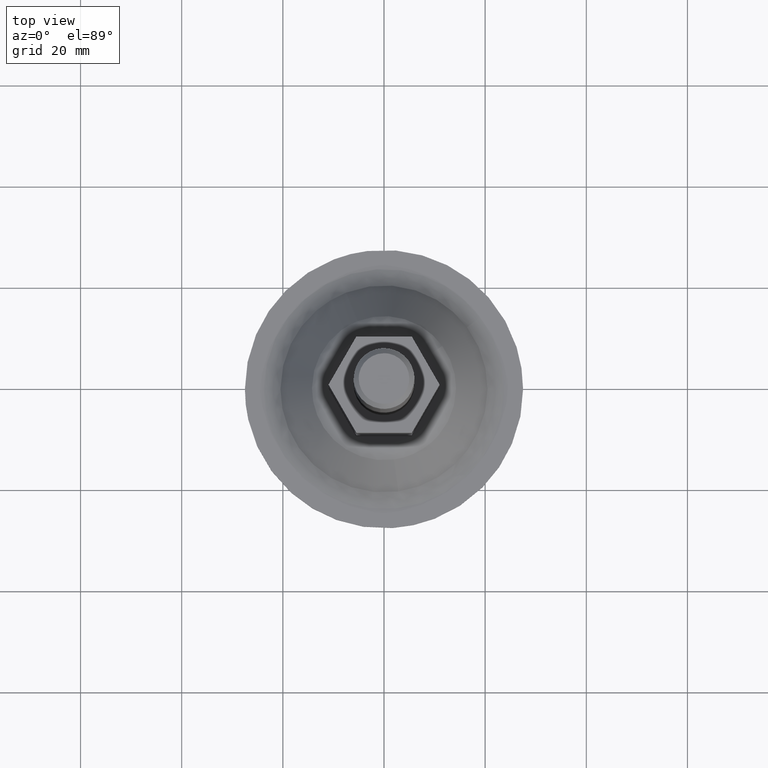
[diagram: clean part render]
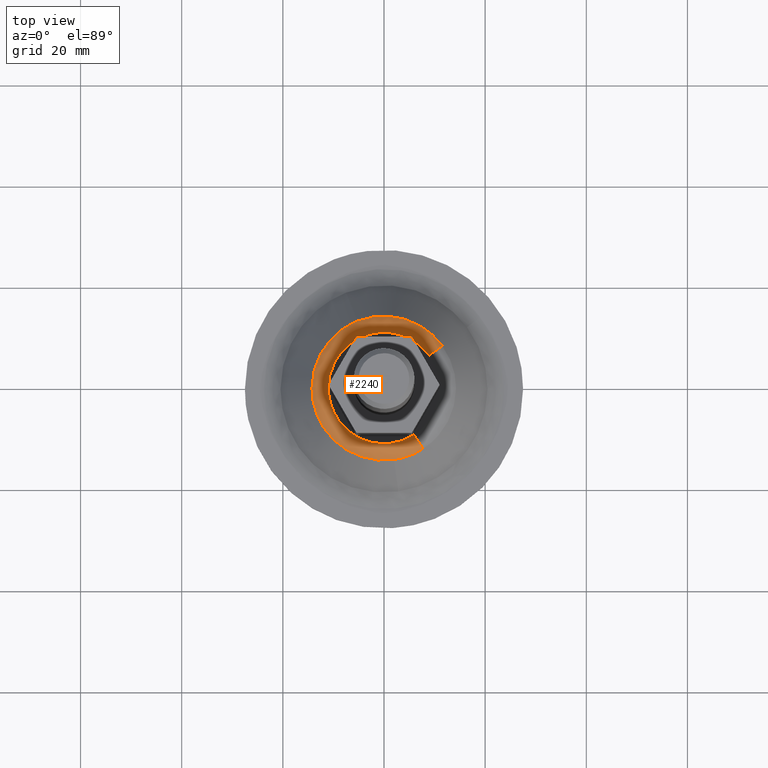
[diagram: same view with one face highlighted and labeled with its STEP entity id]
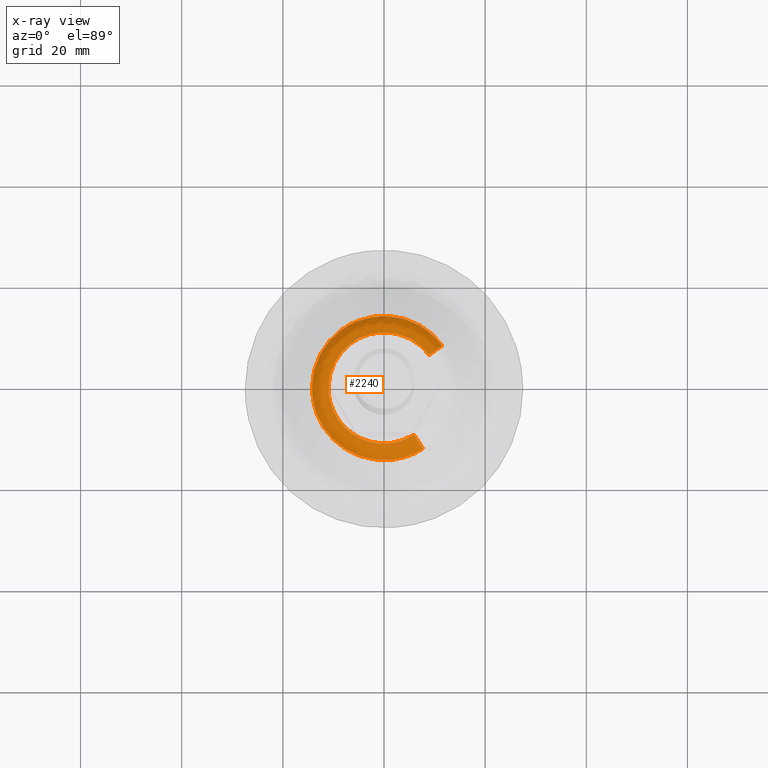
[diagram: x-ray of the same camera — body ghosted, the highlighted face saturated]
A machine part, top view. The second image highlights one B-rep face of the part: STEP entity #2240.
The next image is the same camera in x-ray: the body ghosted, the highlighted face saturated — about 1% of this face is hidden behind the body in this view.
In plain terms, the highlighted face is a freeform B-spline surface patch.
Its self-contained STEP definition (entity closure, byte-faithful):
#1466=CARTESIAN_POINT('',(1.973662397595558,-14.112380766075439,12.332229002119030));
#1467=VERTEX_POINT('',#1466);
#1473=CARTESIAN_POINT('',(-14.249724000000020,0.0,12.332229000000099));
#1474=VERTEX_POINT('',#1473);
#1475=CARTESIAN_POINT('',(1.973662397595558,-14.112380766075445,12.332229002119028));
#1476=CARTESIAN_POINT('',(0.991609918668241,-14.249724000000027,12.332229000000096));
#1477=CARTESIAN_POINT('',(0.0,-14.249724000000020,12.332229000000099));
#1478=CARTESIAN_POINT('',(-14.249724000000022,-14.249724000000022,12.332229000000101));
#1479=CARTESIAN_POINT('',(-14.249724000000020,0.0,12.332229000000099));
#1487=(BOUNDED_CURVE()B_SPLINE_CURVE(2,(#1475,#1476,#1477,#1478,#1479),.UNSPECIFIED.,.F.,.U.)B_SPLINE_CURVE_WITH_KNOTS((3,2,3),(0.726086221411751,0.750000000000000,1.0),.UNSPECIFIED.)CURVE()GEOMETRIC_REPRESENTATION_ITEM()RATIONAL_B_SPLINE_CURVE((0.949326419176318,0.971983265661182,1.0,0.707106781186548,1.0))REPRESENTATION_ITEM(''));
#1488=EDGE_CURVE('',#1467,#1474,#1487,.T.);
#1490=CARTESIAN_POINT('',(-5.222541155026111,13.258193112937951,12.332230166261009));
#1491=VERTEX_POINT('',#1490);
#1492=CARTESIAN_POINT('',(-14.249724000000020,0.0,12.332229000000099));
#1493=CARTESIAN_POINT('',(-14.249724171568751,9.702292238858675,12.332229317023637));
#1494=CARTESIAN_POINT('',(-5.222541155026111,13.258193112937954,12.332230166261004));
#1502=(BOUNDED_CURVE()B_SPLINE_CURVE(2,(#1492,#1493,#1494),.UNSPECIFIED.,.F.,.U.)B_SPLINE_CURVE_WITH_KNOTS((3,3),(0.0,0.187769652484499),.UNSPECIFIED.)CURVE()GEOMETRIC_REPRESENTATION_ITEM()RATIONAL_B_SPLINE_CURVE((1.0,0.780014168353327,0.890481641985128))REPRESENTATION_ITEM(''));
#1503=EDGE_CURVE('',#1474,#1491,#1502,.T.);
#1611=CARTESIAN_POINT('',(11.528269259530280,8.375773833915710,12.332231866010259));
#1612=VERTEX_POINT('',#1611);
#1613=CARTESIAN_POINT('',(-5.222541155026111,13.258193112937949,12.332230166261008));
#1614=CARTESIAN_POINT('',(-2.705395062761318,14.249723360448694,12.332230626552098));
#1615=CARTESIAN_POINT('',(-0.000001027504817,14.249723253474430,12.332230898616571));
#1616=CARTESIAN_POINT('',(7.260597670982422,14.249722966382373,12.332231628769335));
#1617=CARTESIAN_POINT('',(11.528269259530278,8.375773833915710,12.332231866010252));
#1625=(BOUNDED_CURVE()B_SPLINE_CURVE(2,(#1613,#1614,#1615,#1616,#1617),.UNSPECIFIED.,.F.,.U.)B_SPLINE_CURVE_WITH_KNOTS((3,2,3),(0.187769652484499,0.250000000000000,0.398750375973286),.UNSPECIFIED.)CURVE()GEOMETRIC_REPRESENTATION_ITEM()RATIONAL_B_SPLINE_CURVE((0.890481641985128,0.927092612833221,1.0,0.825728094325892,0.858840280576621))REPRESENTATION_ITEM(''));
#1626=EDGE_CURVE('',#1491,#1612,#1625,.T.);
#1643=CARTESIAN_POINT('',(7.702739872282153,-11.988429219982001,12.332229066187830));
#1644=VERTEX_POINT('',#1643);
#1658=CARTESIAN_POINT('',(7.702739872282153,-11.988429219981999,12.332229066187828));
#1659=CARTESIAN_POINT('',(5.071302763283430,-13.679165694888717,12.332229016700254));
#1660=CARTESIAN_POINT('',(1.973662397595557,-14.112380766075448,12.332229002119023));
#1668=(BOUNDED_CURVE()B_SPLINE_CURVE(2,(#1658,#1659,#1660),.UNSPECIFIED.,.F.,.U.)B_SPLINE_CURVE_WITH_KNOTS((3,3),(0.657460173956047,0.726086221411752),.UNSPECIFIED.)CURVE()GEOMETRIC_REPRESENTATION_ITEM()RATIONAL_B_SPLINE_CURVE((0.863428933516483,0.884307425363652,0.949326419176320))REPRESENTATION_ITEM(''));
#1669=EDGE_CURVE('',#1644,#1467,#1668,.T.);
#2143=CARTESIAN_POINT('',(5.848138676533447,-9.101955635896132,13.995893479540475));
#2144=CARTESIAN_POINT('',(-2.747324438049323,-14.624665512097263,13.995893479540477));
#2145=CARTESIAN_POINT('',(-8.752588906192633,-6.359128070496875,13.995893479540475));
#2146=CARTESIAN_POINT('',(-15.111716976689509,2.393460835695759,13.995893479540477));
#2147=CARTESIAN_POINT('',(-6.359128070496875,8.752588906192633,13.995893479540475));
#2148=CARTESIAN_POINT('',(2.393460835695758,15.111716976689509,13.995893479540477));
#2149=CARTESIAN_POINT('',(8.752588906192633,6.359128070496876,13.995893479540475));
#2150=CARTESIAN_POINT('',(7.083464594874746,-11.024598433293013,14.099526789685843));
#2151=CARTESIAN_POINT('',(-3.327652859130220,-17.713892589878327,14.099526789685838));
#2152=CARTESIAN_POINT('',(-10.601433560269035,-7.702392339358741,14.099526789685839));
#2153=CARTESIAN_POINT('',(-18.303825899627778,2.899041220910295,14.099526789685839));
#2154=CARTESIAN_POINT('',(-7.702392339358741,10.601433560269035,14.099526789685839));
#2155=CARTESIAN_POINT('',(2.899041220910293,18.303825899627778,14.099526789685839));
#2156=CARTESIAN_POINT('',(10.601433560269035,7.702392339358743,14.099526789685839));
#2157=CARTESIAN_POINT('',(7.758138576274817,-12.074650934961273,12.182359588724591));
#2158=CARTESIAN_POINT('',(-3.644599569756986,-19.401075786693294,12.182359588724585));
#2159=CARTESIAN_POINT('',(-11.611181162287151,-8.436016914776335,12.182359588724589));
#2160=CARTESIAN_POINT('',(-20.047198077063484,3.175164247510818,12.182359588724589));
#2161=CARTESIAN_POINT('',(-8.436016914776337,11.611181162287151,12.182359588724589));
#2162=CARTESIAN_POINT('',(3.175164247510816,20.047198077063502,12.182359588724589));
#2163=CARTESIAN_POINT('',(11.611181162287151,8.436016914776337,12.182359588724589));
#2171=(BOUNDED_SURFACE()B_SPLINE_SURFACE(2,2,((#2143,#2150,#2157),(#2144,#2151,#2158),(#2145,#2152,#2159),(#2146,#2153,#2160),(#2147,#2154,#2161),(#2148,#2155,#2162),(#2149,#2156,#2163)),.UNSPECIFIED.,.F.,.F.,.U.)B_SPLINE_SURFACE_WITH_KNOTS((3,2,2,3),(3,3),(0.0,22.828338075414361,46.607856903970983,70.387375732527616),(0.0,4.252147818302704),.UNSPECIFIED.)GEOMETRIC_REPRESENTATION_ITEM()RATIONAL_B_SPLINE_SURFACE(((0.907098371974868,0.786721784465132,0.905494872705521),(0.667047426188413,0.578526825388638,0.665868270659577),(0.927972367260647,0.804825693950045,0.926331968535603),(0.656175553643737,0.569097705865245,0.655015616581409),(0.927972367260647,0.804825693950045,0.926331968535603),(0.656175553643737,0.569097705865245,0.655015616581409),(0.927972367260647,0.804825693950045,0.926331968535603)))REPRESENTATION_ITEM('')SURFACE());
#2172=CARTESIAN_POINT('',(5.946089766643171,-9.254405248568702,14.0));
#2173=VERTEX_POINT('',#2172);
#2174=CARTESIAN_POINT('',(-11.0,0.0,14.0));
#2175=VERTEX_POINT('',#2174);
#2176=CARTESIAN_POINT('',(5.946089766643172,-9.254405248568702,13.999999999999998));
#2177=CARTESIAN_POINT('',(3.229272181945686,-11.0,14.000000000000005));
#2178=CARTESIAN_POINT('',(0.0,-11.0,14.0));
#2179=CARTESIAN_POINT('',(-11.0,-11.0,13.999999999999998));
#2180=CARTESIAN_POINT('',(-11.0,0.0,14.0));
#2188=(BOUNDED_CURVE()B_SPLINE_CURVE(2,(#2176,#2177,#2178,#2179,#2180),.UNSPECIFIED.,.F.,.U.)B_SPLINE_CURVE_WITH_KNOTS((3,2,3),(0.657460173954774,0.750000000000000,1.0),.UNSPECIFIED.)CURVE()GEOMETRIC_REPRESENTATION_ITEM()RATIONAL_B_SPLINE_CURVE((0.863428933515709,0.891582849924708,1.0,0.707106781186548,1.0))REPRESENTATION_ITEM(''));
#2189=EDGE_CURVE('',#2173,#2175,#2188,.T.);
#2190=ORIENTED_EDGE('',*,*,#2189,.T.);
#2191=CARTESIAN_POINT('',(8.899186941406232,6.465637777941137,14.0));
#2192=VERTEX_POINT('',#2191);
#2193=CARTESIAN_POINT('',(-11.0,0.0,14.0));
#2194=CARTESIAN_POINT('',(-11.0,11.0,13.999999999999998));
#2195=CARTESIAN_POINT('',(0.0,11.0,14.0));
#2196=CARTESIAN_POINT('',(5.604779944092699,10.999999999999998,14.000000000000007));
#2197=CARTESIAN_POINT('',(8.899186941406232,6.465637777941137,14.000000000000002));
#2205=(BOUNDED_CURVE()B_SPLINE_CURVE(2,(#2193,#2194,#2195,#2196,#2197),.UNSPECIFIED.,.F.,.U.)B_SPLINE_CURVE_WITH_KNOTS((3,2,3),(0.0,0.250000000000000,0.398750340992155),.UNSPECIFIED.)CURVE()GEOMETRIC_REPRESENTATION_ITEM()RATIONAL_B_SPLINE_CURVE((1.0,0.707106781186548,1.0,0.825728135308836,0.858840265002867))REPRESENTATION_ITEM(''));
#2206=EDGE_CURVE('',#2175,#2192,#2205,.T.);
#2207=ORIENTED_EDGE('',*,*,#2206,.T.);
#2208=CARTESIAN_POINT('',(8.899186941406232,6.465637777941137,13.999999999999998));
#2209=CARTESIAN_POINT('',(10.559948555228885,7.672249690377377,13.999999962553588));
#2210=CARTESIAN_POINT('',(11.528269259530282,8.375773833915710,12.332231866010256));
#2218=(BOUNDED_CURVE()B_SPLINE_CURVE(2,(#2208,#2209,#2210),.UNSPECIFIED.,.F.,.U.)B_SPLINE_CURVE_WITH_KNOTS((3,3),(-1.618740153366455,-0.390320518055925),.UNSPECIFIED.)CURVE()GEOMETRIC_REPRESENTATION_ITEM()RATIONAL_B_SPLINE_CURVE((0.917291948153570,0.815431722690659,0.915800333250436))REPRESENTATION_ITEM(''));
#2219=EDGE_CURVE('',#2192,#1612,#2218,.T.);
#2220=ORIENTED_EDGE('',*,*,#2219,.T.);
#2221=ORIENTED_EDGE('',*,*,#1626,.F.);
#2222=ORIENTED_EDGE('',*,*,#1503,.F.);
#2223=ORIENTED_EDGE('',*,*,#1488,.F.);
#2224=ORIENTED_EDGE('',*,*,#1669,.F.);
#2225=CARTESIAN_POINT('',(5.946089766643171,-9.254405248568702,13.999999999999998));
#2226=CARTESIAN_POINT('',(7.055746488755553,-10.981458387175381,13.999999999173530));
#2227=CARTESIAN_POINT('',(7.702739872282153,-11.988429219981999,12.332229066187825));
#2235=(BOUNDED_CURVE()B_SPLINE_CURVE(2,(#2225,#2226,#2227),.UNSPECIFIED.,.F.,.U.)B_SPLINE_CURVE_WITH_KNOTS((3,3),(-1.618740155689469,-0.390319360026109),.UNSPECIFIED.)CURVE()GEOMETRIC_REPRESENTATION_ITEM()RATIONAL_B_SPLINE_CURVE((0.896658200719359,0.797089145033400,0.895200323100657))REPRESENTATION_ITEM(''));
#2236=EDGE_CURVE('',#2173,#1644,#2235,.T.);
#2237=ORIENTED_EDGE('',*,*,#2236,.F.);
#2238=EDGE_LOOP('',(#2190,#2207,#2220,#2221,#2222,#2223,#2224,#2237));
#2239=FACE_OUTER_BOUND('',#2238,.T.);
#2240=ADVANCED_FACE('',(#2239),#2171,.T.);